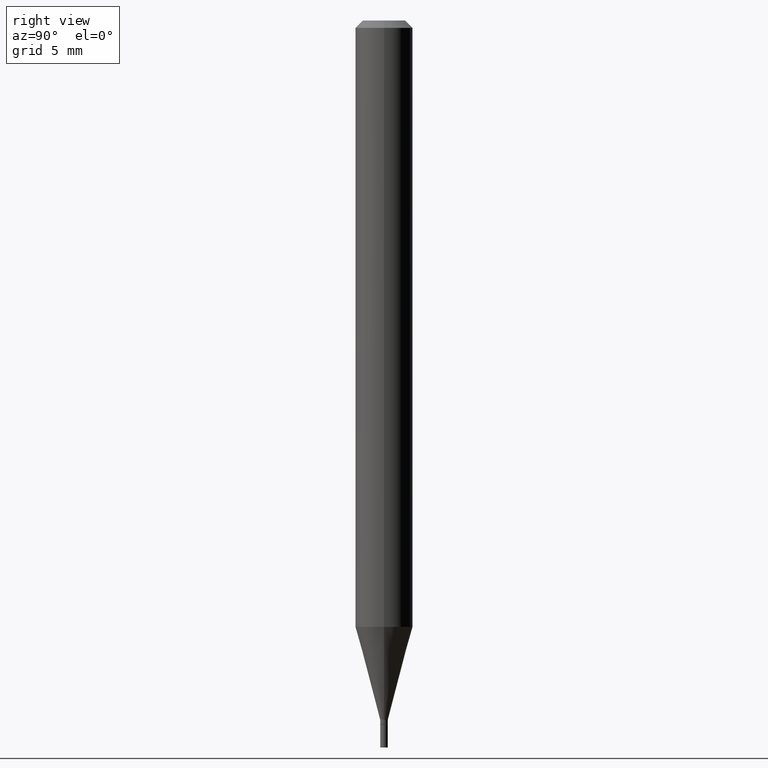
[diagram: clean part render]
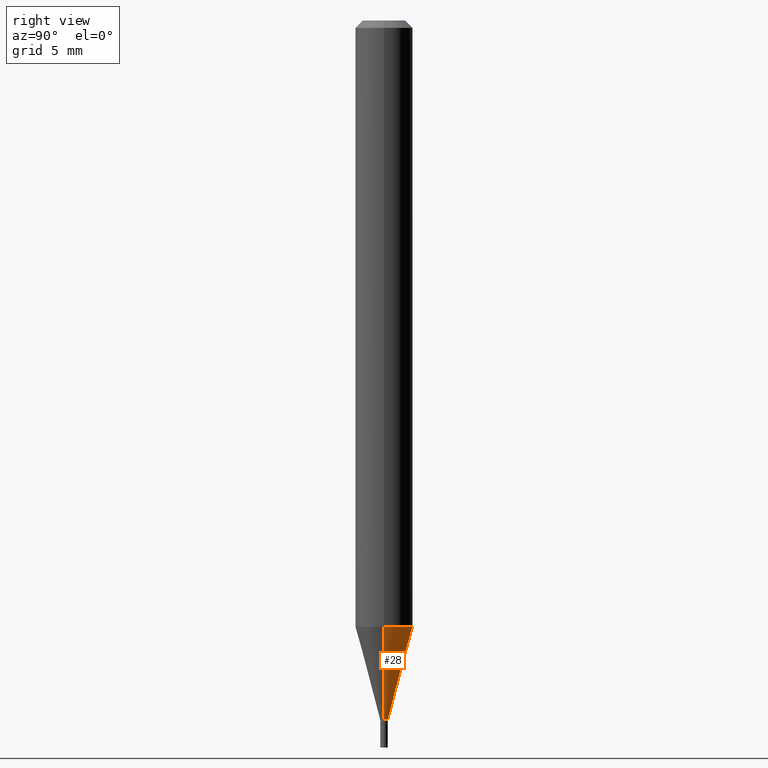
[diagram: same view with one face highlighted and labeled with its STEP entity id]
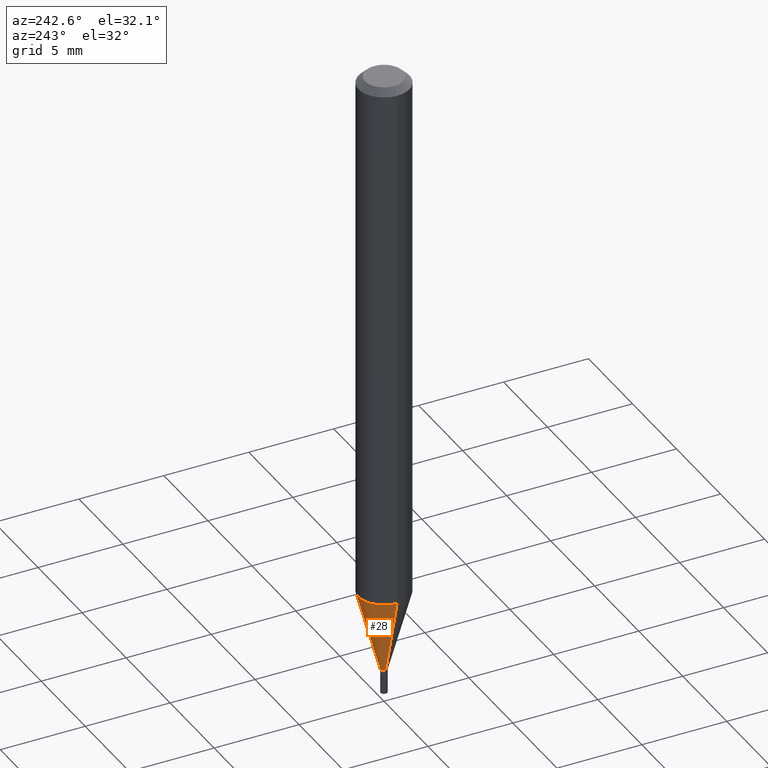
[diagram: same view with one face highlighted and labeled with its STEP entity id]
A machine part, right view. The second image highlights one B-rep face of the part: STEP entity #28.
A second angle (auxiliary view) of the same face is appended — the face is thin or edge-on in the first view.
In plain terms, the highlighted conical surface has half-angle 15 deg.
Its self-contained STEP definition (entity closure, byte-faithful):
#20 = DIRECTION ( 'NONE',  ( -0.2588190451025214611, 5.211531920934550253E-15, 0.9659258262890679791 ) ) ;
#28 = ADVANCED_FACE ( 'NONE', ( #449 ), #433, .T. ) ;
#45 = EDGE_CURVE ( 'NONE', #254, #81, #372, .T. ) ;
#50 = CIRCLE ( 'NONE', #325, 0.05904999999999999832 ) ;
#63 = EDGE_LOOP ( 'NONE', ( #194, #327, #260, #376 ) ) ;
#64 = LINE ( 'NONE', #274, #188 ) ;
#65 = DIRECTION ( 'NONE',  ( -2.445468806185136597E-29, 3.491481338843145583E-15, 1.000000000000000000 ) ) ;
#77 = DIRECTION ( 'NONE',  ( -2.445468806185136597E-29, 3.491481338843145583E-15, 1.000000000000000000 ) ) ;
#81 = VERTEX_POINT ( 'NONE', #461 ) ;
#85 = AXIS2_PLACEMENT_3D ( 'NONE', #154, #438, #112 ) ;
#89 = EDGE_CURVE ( 'NONE', #251, #406, #64, .T. ) ;
#112 = DIRECTION ( 'NONE',  ( 1.000000000000000000, -6.982962677686276177E-15, 0.000000000000000000 ) ) ;
#135 = DIRECTION ( 'NONE',  ( 0.2588190451025214611, 1.565188264969620982E-15, 0.9659258262890679791 ) ) ;
#154 = CARTESIAN_POINT ( 'NONE',  ( 3.519274158981029926E-29, -5.024590794729170365E-15, -1.439100000000000046 ) ) ;
#175 = CARTESIAN_POINT ( 'NONE',  ( 0.05904999999999999138, -4.769778990434194719E-15, -1.248018998652473677 ) ) ;
#188 = VECTOR ( 'NONE', #135, 39.37007874015748143 ) ;
#194 = ORIENTED_EDGE ( 'NONE', *, *, #248, .T. ) ;
#248 = EDGE_CURVE ( 'NONE', #251, #254, #317, .T. ) ;
#251 = VERTEX_POINT ( 'NONE', #294 ) ;
#254 = VERTEX_POINT ( 'NONE', #330 ) ;
#260 = ORIENTED_EDGE ( 'NONE', *, *, #430, .F. ) ;
#262 = CARTESIAN_POINT ( 'NONE',  ( 3.519274158981029926E-29, -5.024590794729170365E-15, -1.439100000000000046 ) ) ;
#271 = VECTOR ( 'NONE', #20, 39.37007874015748143 ) ;
#274 = CARTESIAN_POINT ( 'NONE',  ( 0.007849999999999917807, -5.079407051749007154E-15, -1.439100000000000046 ) ) ;
#280 = AXIS2_PLACEMENT_3D ( 'NONE', #262, #77, #366 ) ;
#294 = CARTESIAN_POINT ( 'NONE',  ( 0.007849999999999917807, -5.079407051749007154E-15, -1.439100000000000046 ) ) ;
#317 = CIRCLE ( 'NONE', #85, 0.007849999999999917807 ) ;
#322 = DIRECTION ( 'NONE',  ( 1.000000000000000000, -6.982962677686273021E-15, 0.000000000000000000 ) ) ;
#325 = AXIS2_PLACEMENT_3D ( 'NONE', #354, #65, #322 ) ;
#327 = ORIENTED_EDGE ( 'NONE', *, *, #45, .T. ) ;
#330 = CARTESIAN_POINT ( 'NONE',  ( -0.007849999999999917807, -4.453336374411242108E-15, -1.439100000000000046 ) ) ;
#354 = CARTESIAN_POINT ( 'NONE',  ( 3.051991530731034752E-29, -4.357435044316820587E-15, -1.248018998652473677 ) ) ;
#366 = DIRECTION ( 'NONE',  ( 1.000000000000000000, -6.982962677686276177E-15, 0.000000000000000000 ) ) ;
#372 = LINE ( 'NONE', #404, #271 ) ;
#376 = ORIENTED_EDGE ( 'NONE', *, *, #89, .F. ) ;
#404 = CARTESIAN_POINT ( 'NONE',  ( -0.007849999999999917807, -4.968813189972003121E-15, -1.439100000000000046 ) ) ;
#406 = VERTEX_POINT ( 'NONE', #175 ) ;
#430 = EDGE_CURVE ( 'NONE', #406, #81, #50, .T. ) ;
#433 = CONICAL_SURFACE ( 'NONE', #280, 0.007849999999999917807, 0.2617993877991501850 ) ;
#438 = DIRECTION ( 'NONE',  ( -2.445468806185136597E-29, 3.491481338843145583E-15, 1.000000000000000000 ) ) ;
#449 = FACE_OUTER_BOUND ( 'NONE', #63, .T. ) ;
#461 = CARTESIAN_POINT ( 'NONE',  ( -0.05904999999999999138, -3.937859558850481883E-15, -1.248018998652473677 ) ) ;